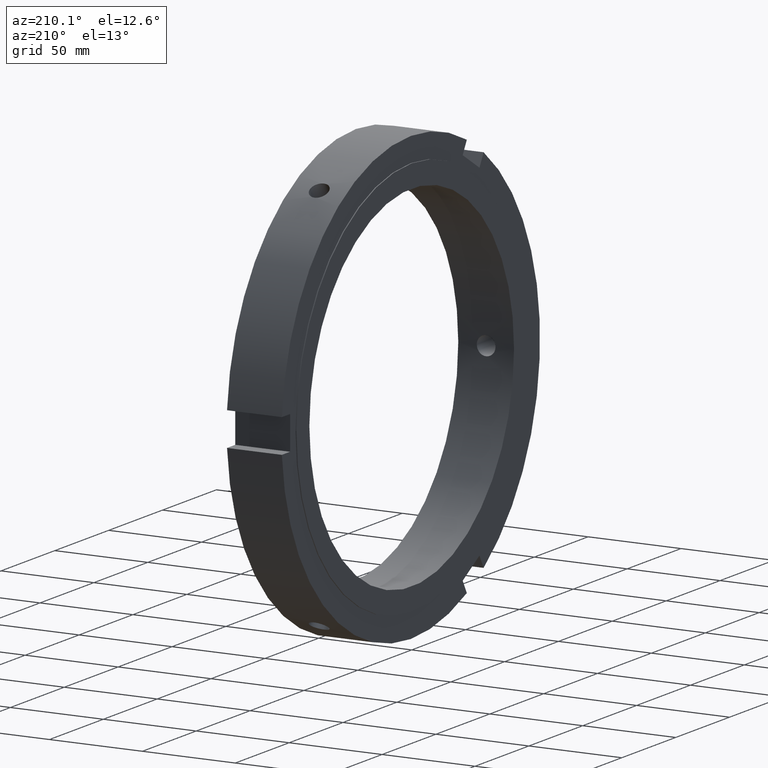
[diagram: clean part render]
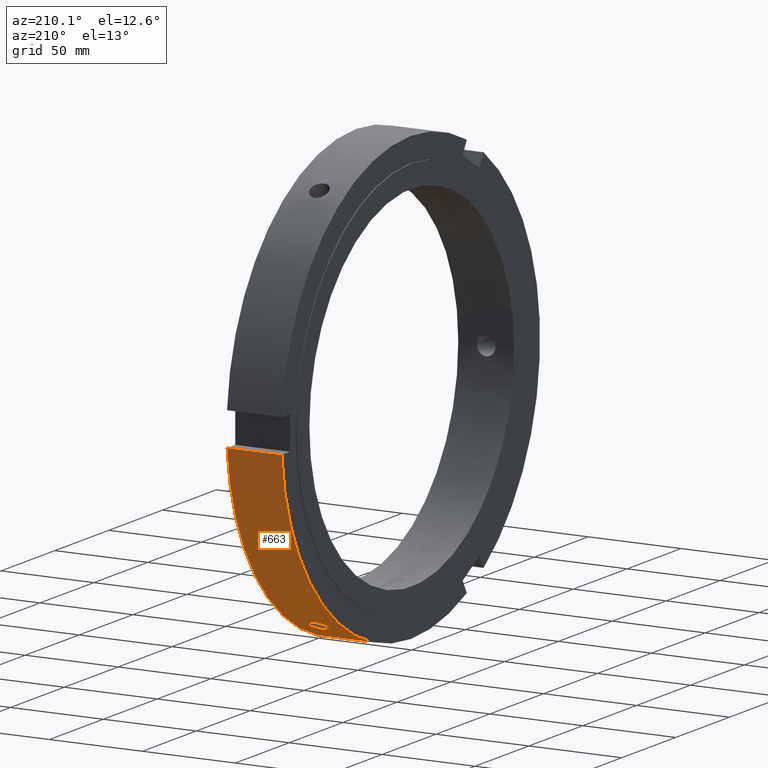
[diagram: same view with one face highlighted and labeled with its STEP entity id]
A machine part, auxiliary view. The second image highlights one B-rep face of the part: STEP entity #663.
In plain terms, the highlighted cylindrical surface (partial cylindrical patch) has radius 120 mm, axis along (1, 0, 0).
Its self-contained STEP definition (entity closure, byte-faithful):
#161=CARTESIAN_POINT('',(14.999999999999973,55.597095500229102,-106.34360804457599));
#162=VERTEX_POINT('',#161);
#163=CARTESIAN_POINT('',(14.999999999999973,55.597095500229095,-106.34360804457599));
#164=CARTESIAN_POINT('',(15.634546196469161,55.597095500229095,-106.34360804457599));
#165=CARTESIAN_POINT('',(16.311337213413214,55.709695230536759,-106.28497750766095));
#166=CARTESIAN_POINT('',(17.556271259865774,56.166280403696824,-106.04440358663874));
#167=CARTESIAN_POINT('',(18.124420592689923,56.5101179633143,-105.8622122403612));
#168=CARTESIAN_POINT('',(19.021606140913534,57.300356700895847,-105.43657113689153));
#169=CARTESIAN_POINT('',(19.410472343875121,57.799431153954515,-105.16469616647177));
#170=CARTESIAN_POINT('',(19.926171325682464,58.887452155248504,-104.5593398036202));
#171=CARTESIAN_POINT('',(20.052999999999969,59.476260543803292,-104.22560663104733));
#172=CARTESIAN_POINT('',(20.052999999999976,60.575170114514435,-103.59078828737861));
#173=CARTESIAN_POINT('',(19.926169489853041,61.158430259351412,-103.24744053344929));
#174=CARTESIAN_POINT('',(19.410467423717293,62.226387648526689,-102.60733038488468));
#175=CARTESIAN_POINT('',(19.021600068503485,62.711234014069468,-102.31081343139454));
#176=CARTESIAN_POINT('',(18.124415308295838,63.474743270768982,-101.83888442944055));
#177=CARTESIAN_POINT('',(17.556268320512832,63.804346276740176,-101.63204211647215));
#178=CARTESIAN_POINT('',(16.311337221939457,64.240852671415439,-101.35669408908004));
#179=CARTESIAN_POINT('',(15.634546710730191,64.347896795712217,-101.28844049529228));
#180=CARTESIAN_POINT('',(14.365453289269755,64.347896795712217,-101.28844049529228));
#181=CARTESIAN_POINT('',(13.688662778060493,64.240852671415439,-101.35669408908004));
#182=CARTESIAN_POINT('',(12.443731679487124,63.804346276740176,-101.63204211647215));
#183=CARTESIAN_POINT('',(11.875584691704111,63.47474327076899,-101.83888442944055));
#184=CARTESIAN_POINT('',(10.978399931496464,62.711234014069468,-102.31081343139454));
#185=CARTESIAN_POINT('',(10.589532576282652,62.226387648526689,-102.60733038488468));
#186=CARTESIAN_POINT('',(10.073830510146905,61.158430259351412,-103.24744053344929));
#187=CARTESIAN_POINT('',(9.946999999999971,60.575170114514435,-103.59078828737861));
#188=CARTESIAN_POINT('',(9.946999999999978,59.476260543803292,-104.22560663104736));
#189=CARTESIAN_POINT('',(10.073828674317484,58.887452155248489,-104.5593398036202));
#190=CARTESIAN_POINT('',(10.589527656124819,57.799431153954515,-105.16469616647177));
#191=CARTESIAN_POINT('',(10.978393859086415,57.300356700895861,-105.43657113689153));
#192=CARTESIAN_POINT('',(11.875579407310024,56.5101179633143,-105.8622122403612));
#193=CARTESIAN_POINT('',(12.443728740134173,56.166280403696824,-106.04440358663874));
#194=CARTESIAN_POINT('',(13.688662786586733,55.709695230536759,-106.28497750766095));
#195=CARTESIAN_POINT('',(14.365453803530784,55.597095500229095,-106.34360804457599));
#196=CARTESIAN_POINT('',(14.999999999999972,55.597095500229095,-106.34360804457599));
#197=B_SPLINE_CURVE_WITH_KNOTS('',3,(#163,#164,#165,#166,#167,#168,#169,#170,#171,#172,#173,#174,#175,#176,#177,#178,#179,#180,#181,#182,#183,#184,#185,#186,#187,#188,#189,#190,#191,#192,#193,#194,#195,#196),.UNSPECIFIED.,.T.,.U.,(4,2,2,2,2,2,2,2,2,2,2,2,2,2,2,2,4),(0.0,0.190363858940756,0.380727717881513,0.571090869717614,0.761454021553715,0.951818714332764,1.142183407111813,1.332547420330878,1.522911433549943,1.713275446769008,1.903639459988073,2.094004152767122,2.284368845546171,2.474731997382272,2.665095149218374,2.85545900815913,3.045822867099886),.UNSPECIFIED.);
#198=EDGE_CURVE('',#162,#162,#197,.T.);
#408=CARTESIAN_POINT('',(0.499999999999972,-52.036783391477499,-108.13035269649525));
#409=VERTEX_POINT('',#408);
#416=CARTESIAN_POINT('',(29.999999999999972,-52.036783391477499,-108.13035269649525));
#417=VERTEX_POINT('',#416);
#418=CARTESIAN_POINT('',(29.999999999999972,-52.036783391477485,-108.13035269649525));
#419=DIRECTION('',(-1.0,0.0,0.0));
#420=VECTOR('',#419,29.5);
#421=LINE('',#418,#420);
#422=EDGE_CURVE('',#417,#409,#421,.T.);
#544=CARTESIAN_POINT('',(29.999999999999972,119.66202405107479,-8.999999999999988));
#545=VERTEX_POINT('',#544);
#546=CARTESIAN_POINT('',(29.999999999999972,0.0,0.0));
#547=DIRECTION('',(1.0,0.0,0.0));
#548=DIRECTION('',(0.0,1.0,0.0));
#549=AXIS2_PLACEMENT_3D('',#546,#547,#548);
#550=CIRCLE('',#549,120.0);
#551=EDGE_CURVE('',#417,#545,#550,.T.);
#636=CARTESIAN_POINT('',(15.24999999999997,0.0,0.0));
#637=DIRECTION('',(1.0,0.0,0.0));
#638=DIRECTION('',(0.0,1.0,0.0));
#639=AXIS2_PLACEMENT_3D('',#636,#637,#638);
#640=CYLINDRICAL_SURFACE('',#639,120.0);
#641=ORIENTED_EDGE('',*,*,#422,.T.);
#642=CARTESIAN_POINT('',(0.499999999999972,119.66202405107479,-8.999999999999988));
#643=VERTEX_POINT('',#642);
#644=CARTESIAN_POINT('',(0.499999999999967,0.0,0.0));
#645=DIRECTION('',(1.0,0.0,0.0));
#646=DIRECTION('',(0.0,1.0,0.0));
#647=AXIS2_PLACEMENT_3D('',#644,#645,#646);
#648=CIRCLE('',#647,120.0);
#649=EDGE_CURVE('',#409,#643,#648,.T.);
#650=ORIENTED_EDGE('',*,*,#649,.T.);
#651=CARTESIAN_POINT('',(0.499999999999972,119.66202405107479,-8.999999999999988));
#652=DIRECTION('',(1.0,0.0,0.0));
#653=VECTOR('',#652,29.5);
#654=LINE('',#651,#653);
#655=EDGE_CURVE('',#643,#545,#654,.T.);
#656=ORIENTED_EDGE('',*,*,#655,.T.);
#657=ORIENTED_EDGE('',*,*,#551,.F.);
#658=EDGE_LOOP('',(#641,#650,#656,#657));
#659=FACE_OUTER_BOUND('',#658,.T.);
#660=ORIENTED_EDGE('',*,*,#198,.T.);
#661=EDGE_LOOP('',(#660));
#662=FACE_BOUND('',#661,.T.);
#663=ADVANCED_FACE('',(#659,#662),#640,.T.);